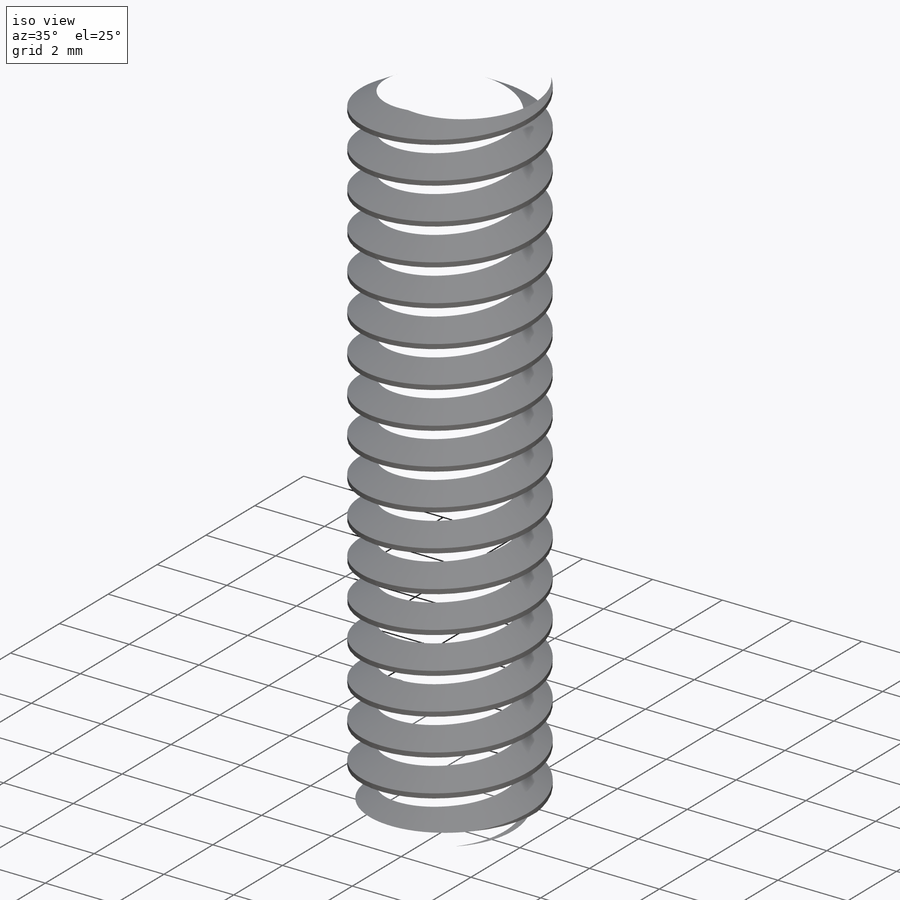
[diagram: iso view]
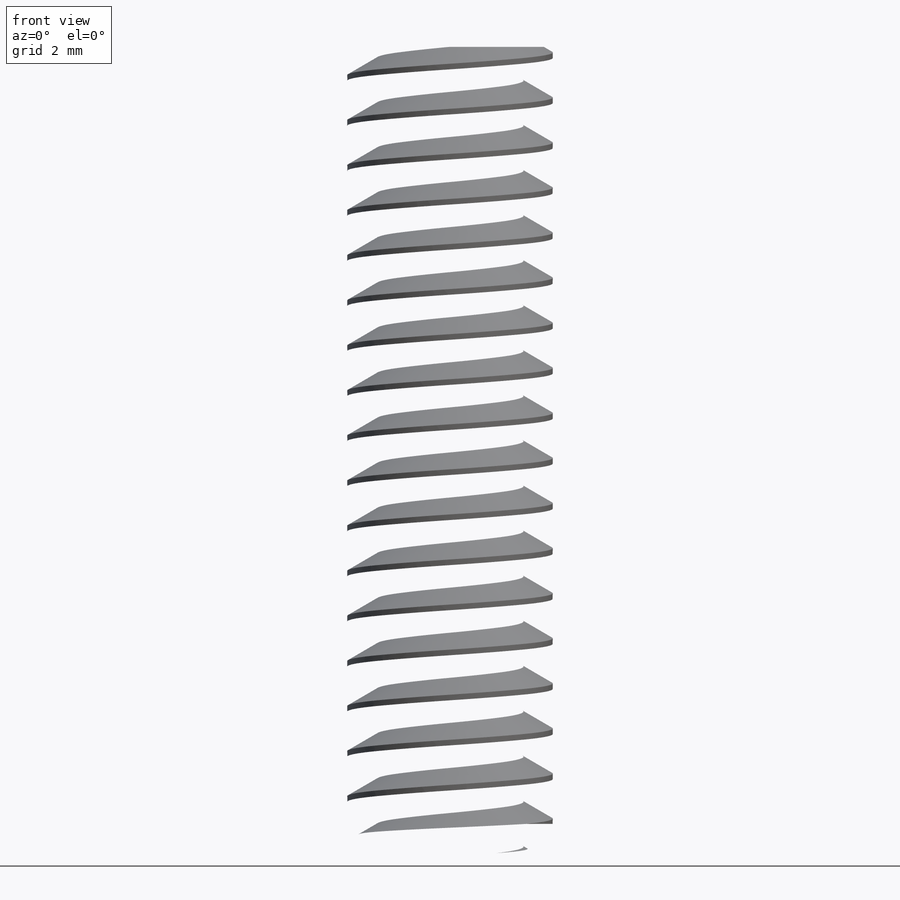
[diagram: front view]
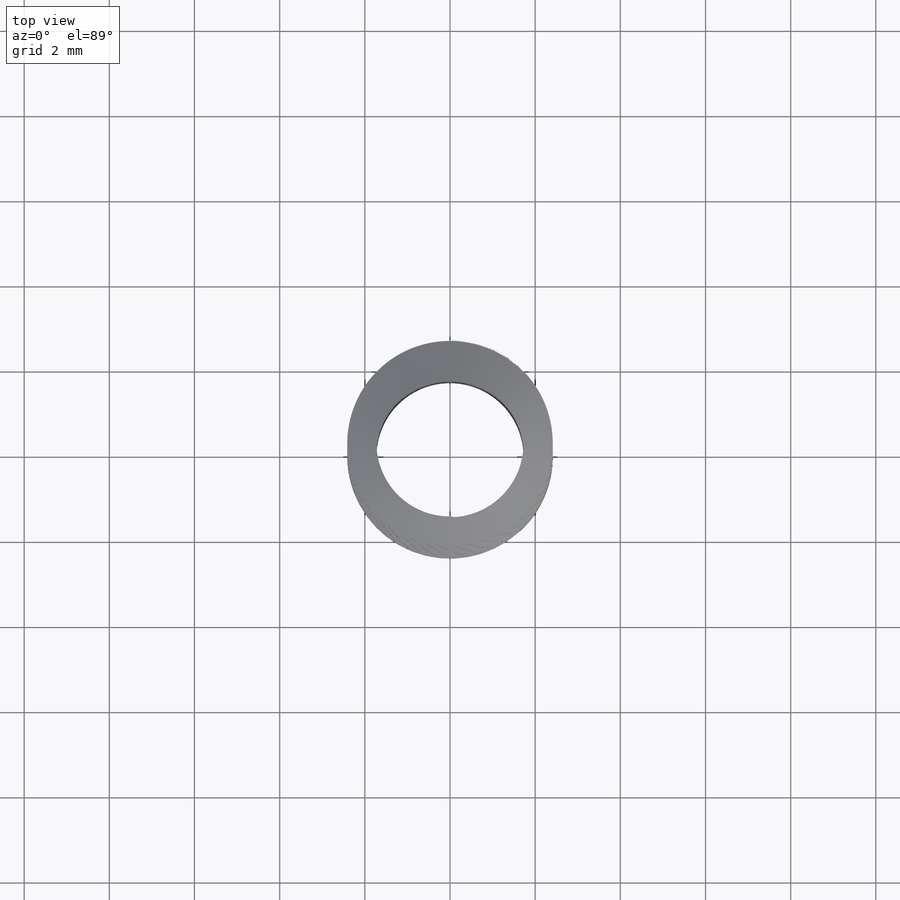
[diagram: top view]
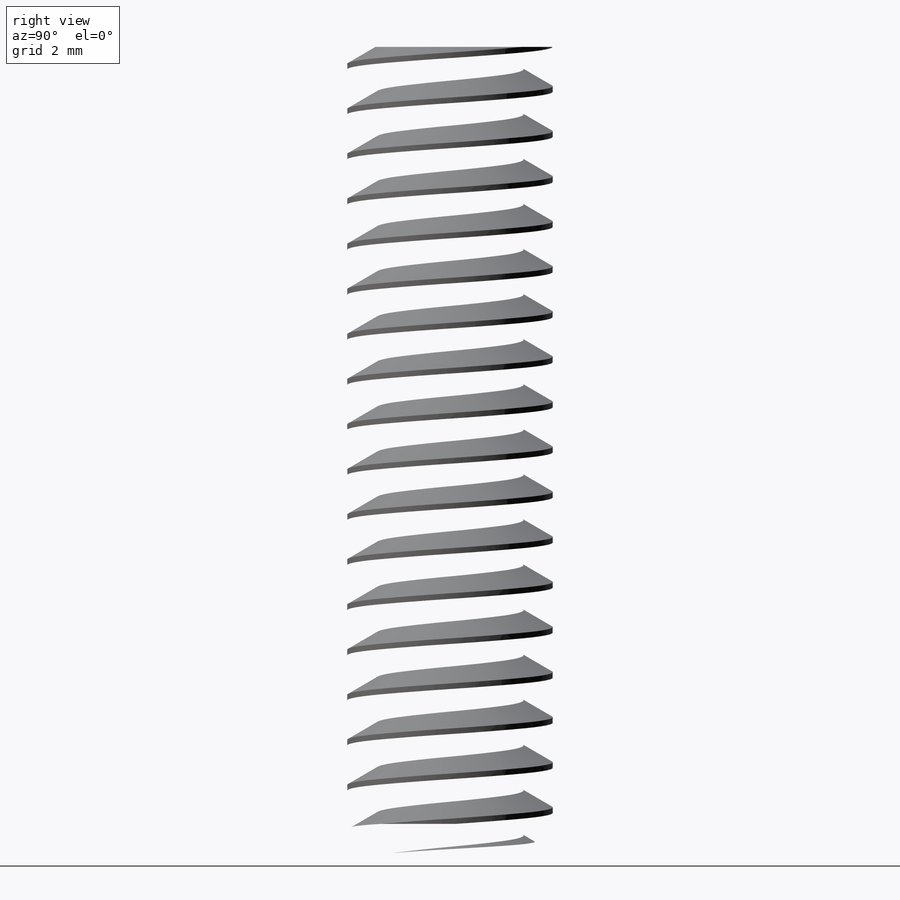
[diagram: right view]
SOLIDWORKS PART (.sldprt)
format: sldprt  version: not decoded by parser v0  size: 1,794,560 bytes
history: native  units: mm
features: sketch x14, cut_extrude x7, extrude x5, material x1, helix x1, sweep x1, chamfer x1, fillet x1 (+15 scaffold rows collapsed)
feature tree (46):
  scaffold x15  (default folders/planes/origin — collapsed)
  material  "Material <not specified>"
  sketch  "Sketch1"  dims[D1=4.826mm]
  extrude  "Boss-Extrude1"  Depth=19.05mm
  sketch  "Sketch2"  dims[D1=0.0mm]
  helix  "Helix/Spiral1"  Pitch=20.108333mm
  sketch  "Sketch3"  dims[D1=~1.058333mm D2=~0.132292mm D3=25.4mm]
  sweep  "Cut-Sweep1"
  sketch  "Sketch4"
  cut_extrude  "Cut-Extrude1"  Depth=1.058333mm
  sketch  "Sketch5"  dims[D1=7.9248mm]
  extrude  "Boss-Extrude2"  Depth=4.826mm
  sketch  "Sketch6"  dims[D1=~3.96875mm]
  cut_extrude  "Cut-Extrude2"  Depth=2.976562mm
  sketch  "Sketch7"
  cut_extrude  "Cut-Extrude3"  Depth=2.976562mm
  chamfer  "Chamfer1"  Distance=0.39624mm Angle=45deg
  sketch  "Sketch8"  dims[c1.D1=14.224mm c1.D3=14.224mm c1.D2=5.0292mm c2.D3=18.542mm c2.D4=24.892mm c2.D1=18.5674mm c2.D5=4.318mm c2.D6=10.922mm c2.D7=1.2954mm c3.D4=~6.094095mm c3.D8=24.003mm]
  extrude  "Boss-Extrude3"  Depth=10.414mm
  sketch  "Sketch9"
  extrude  "Boss-Extrude4"  Depth=2.286mm
  sketch  "Sketch10"  dims[c1.D2=21.844mm c1.D1=4.953mm c2.D2=2.3622mm]
  cut_extrude  "Cut-Extrude4"  [1 undecoded]
  sketch  "Sketch11"  dims[D1=8.636mm]
  cut_extrude  "Cut-Extrude5"  [1 undecoded]
  sketch  "Sketch12"  dims[D1=0.0mm]
  cut_extrude  "Cut-Extrude6"  [1 undecoded]
  sketch  "Sketch13"  dims[c1.D1=4.318mm c1.D2=10.922mm c2.D1=4.318mm]
  extrude  "Boss-Extrude5"  Depth=12.446mm
  sketch  "Sketch14"  dims[D1=0.0mm]
  cut_extrude  "Cut-Extrude7"  [1 undecoded]
  fillet  "Fillet1"  Radius=0.381mm
decode coverage: 22 of 30 modeling features carry decoded parameters
note: ~ marks probable driven/reference dimensions
note: 4 parameter values undecoded
summary: no parameter record found for 4 features
note: suppression state not decoded; provenance and decode notes live in map.json
